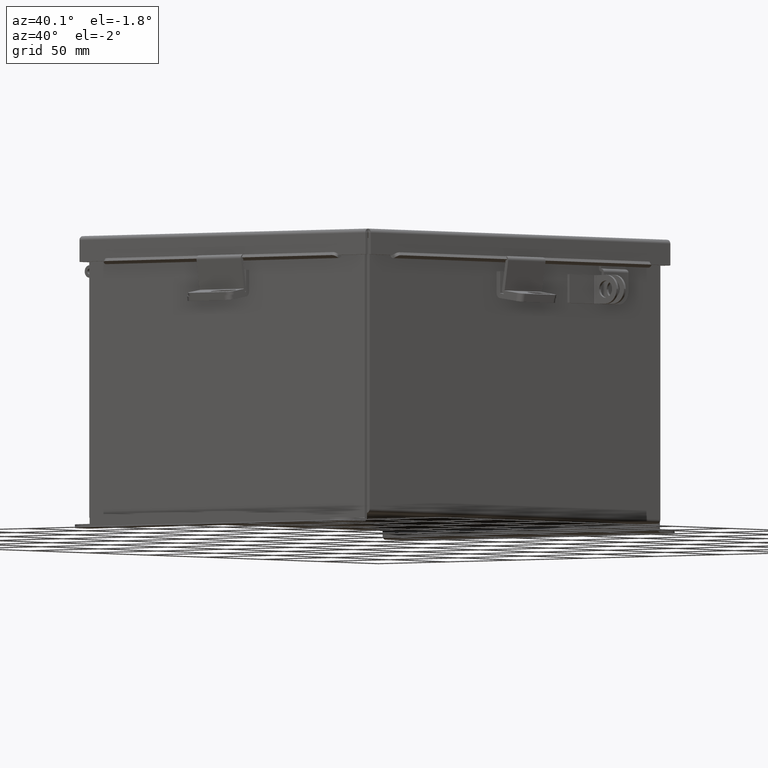
[diagram: clean part render]
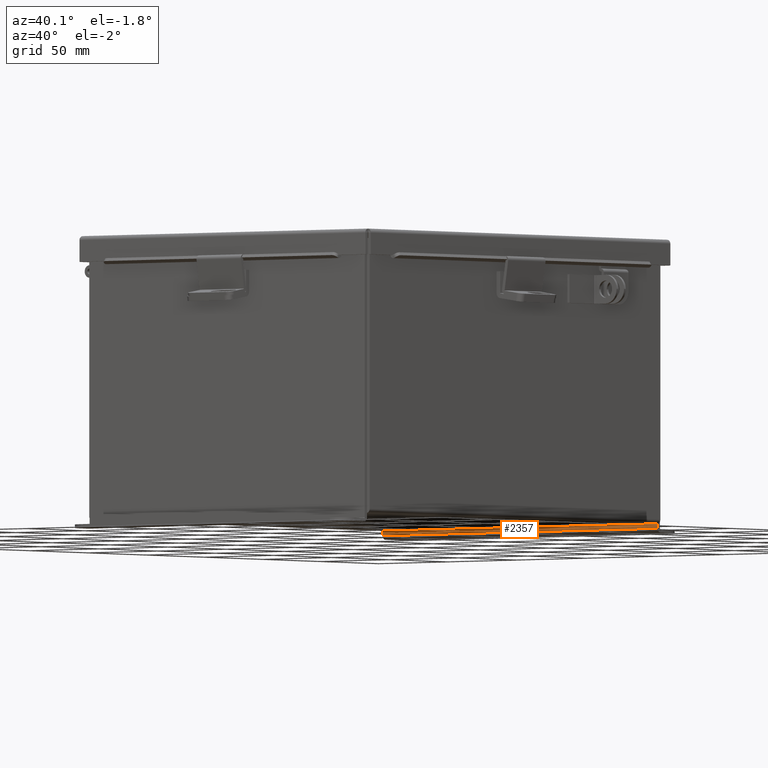
[diagram: same view with one face highlighted and labeled with its STEP entity id]
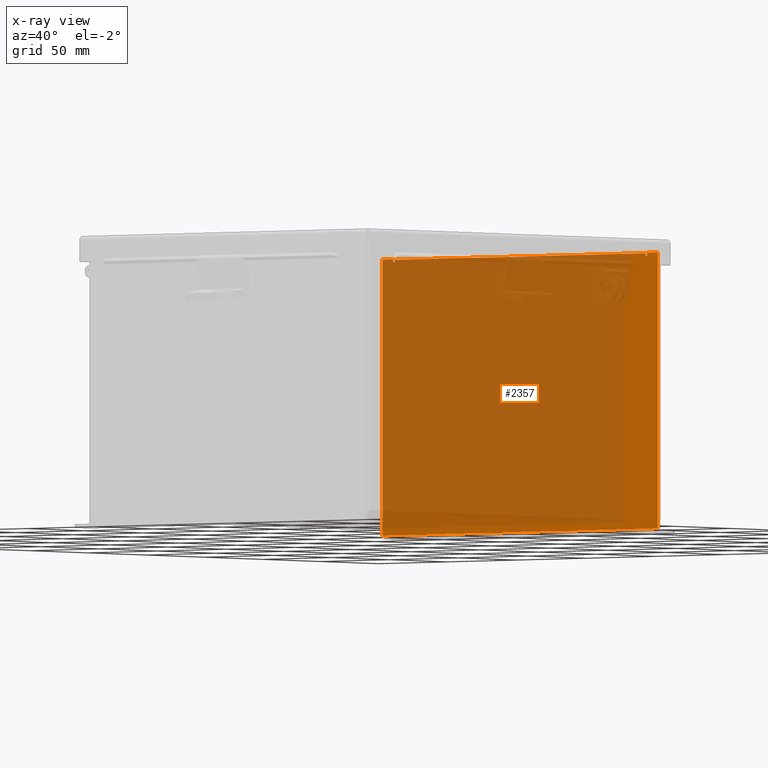
[diagram: x-ray of the same camera — body ghosted, the highlighted face saturated]
A machine part, auxiliary view. The second image highlights one B-rep face of the part: STEP entity #2357.
The next image is the same camera in x-ray: the body ghosted, the highlighted face saturated — about 86% of this face is hidden behind the body in this view.
In plain terms, the highlighted planar face has unit normal (0, -1, 0).
Its self-contained STEP definition (entity closure, byte-faithful):
#90 = DIRECTION ( 'NONE',  ( 0.0000000000000000000, -1.000000000000000000, 0.0000000000000000000 ) ) ;
#347 = DIRECTION ( 'NONE',  ( 0.0000000000000000000, -1.000000000000000000, 0.0000000000000000000 ) ) ;
#409 = LINE ( 'NONE', #1976, #13574 ) ;
#448 = EDGE_LOOP ( 'NONE', ( #13581, #15116, #8934, #9016, #13176, #3274, #9006, #5474, #8708, #10092, #12598, #9792 ) ) ;
#780 = EDGE_CURVE ( 'NONE', #10496, #4233, #409, .T. ) ;
#892 = CARTESIAN_POINT ( 'NONE',  ( 3.925299999999999600, -0.07470000000000015500, 2.925299999999999600 ) ) ;
#933 = VECTOR ( 'NONE', #13451, 39.37007874015748100 ) ;
#962 = VECTOR ( 'NONE', #10727, 39.37007874015748100 ) ;
#1055 = VECTOR ( 'NONE', #14631, 39.37007874015748100 ) ;
#1268 = DIRECTION ( 'NONE',  ( 1.000000000000000000, 0.0000000000000000000, 0.0000000000000000000 ) ) ;
#1286 = CARTESIAN_POINT ( 'NONE',  ( 3.619649999999999600, -0.07470000000000015500, 2.874949999999999200 ) ) ;
#1338 = LINE ( 'NONE', #6052, #7951 ) ;
#1412 = VERTEX_POINT ( 'NONE', #9474 ) ;
#1668 = VERTEX_POINT ( 'NONE', #11249 ) ;
#1976 = CARTESIAN_POINT ( 'NONE',  ( -3.925299999999999600, -0.07470000000000015500, 2.925299999999999600 ) ) ;
#2208 = EDGE_CURVE ( 'NONE', #1668, #10496, #5750, .T. ) ;
#2306 = DIRECTION ( 'NONE',  ( 1.000000000000000000, -0.0000000000000000000, -0.0000000000000000000 ) ) ;
#2357 = ADVANCED_FACE ( 'NONE', ( #5948 ), #7974, .T. ) ;
#2408 = CARTESIAN_POINT ( 'NONE',  ( -3.582299999999999600, -0.07470000000000015500, 2.874949999999999200 ) ) ;
#2677 = CARTESIAN_POINT ( 'NONE',  ( 3.600974999999999600, -0.07469999999999907300, 2.874949999999999200 ) ) ;
#2847 = CARTESIAN_POINT ( 'NONE',  ( 0.0000000000000000000, -0.07470000000000015500, 0.0000000000000000000 ) ) ;
#3137 = CIRCLE ( 'NONE', #5861, 0.01867500000000003900 ) ;
#3274 = ORIENTED_EDGE ( 'NONE', *, *, #8460, .F. ) ;
#3415 = VERTEX_POINT ( 'NONE', #14360 ) ;
#3448 = AXIS2_PLACEMENT_3D ( 'NONE', #2847, #347, #9255 ) ;
#3767 = EDGE_CURVE ( 'NONE', #9686, #15648, #9196, .T. ) ;
#3978 = DIRECTION ( 'NONE',  ( 0.0000000000000000000, 0.0000000000000000000, -1.000000000000000000 ) ) ;
#4233 = VERTEX_POINT ( 'NONE', #5393 ) ;
#4312 = AXIS2_PLACEMENT_3D ( 'NONE', #2677, #11598, #3978 ) ;
#4321 = CARTESIAN_POINT ( 'NONE',  ( -3.619649999999999600, -0.07469999999999907300, 2.925299999999999600 ) ) ;
#4367 = LINE ( 'NONE', #4321, #962 ) ;
#4462 = LINE ( 'NONE', #12065, #1055 ) ;
#4550 = CARTESIAN_POINT ( 'NONE',  ( -3.582299999999999600, -0.07469999999999907300, 2.912299999999999200 ) ) ;
#5139 = CARTESIAN_POINT ( 'NONE',  ( -3.925299999999999600, -0.07470000000000015500, 2.925299999999999600 ) ) ;
#5156 = CARTESIAN_POINT ( 'NONE',  ( -3.925299999999999600, -0.07470000000000015500, 2.925299999999999600 ) ) ;
#5393 = CARTESIAN_POINT ( 'NONE',  ( -3.619649999999999600, -0.07470000000000015500, 2.925299999999999600 ) ) ;
#5474 = ORIENTED_EDGE ( 'NONE', *, *, #12707, .F. ) ;
#5646 = CARTESIAN_POINT ( 'NONE',  ( 3.925299999999999600, -0.07470000000000015500, 2.925299999999999600 ) ) ;
#5750 = LINE ( 'NONE', #5156, #8345 ) ;
#5861 = AXIS2_PLACEMENT_3D ( 'NONE', #7715, #90, #9000 ) ;
#5948 = FACE_OUTER_BOUND ( 'NONE', #448, .T. ) ;
#5994 = VERTEX_POINT ( 'NONE', #2408 ) ;
#6052 = CARTESIAN_POINT ( 'NONE',  ( -3.925299999999999600, -0.07470000000000015500, -3.099299999999999900 ) ) ;
#6500 = CARTESIAN_POINT ( 'NONE',  ( 3.582299999999999600, -0.07469999999999907300, 2.912299999999999200 ) ) ;
#7126 = CARTESIAN_POINT ( 'NONE',  ( 3.925299999999999600, -0.07470000000000015500, -3.099299999999999900 ) ) ;
#7261 = EDGE_CURVE ( 'NONE', #1668, #11210, #1338, .T. ) ;
#7326 = LINE ( 'NONE', #10019, #8728 ) ;
#7715 = CARTESIAN_POINT ( 'NONE',  ( -3.600974999999999600, -0.07469999999999907300, 2.874949999999999200 ) ) ;
#7951 = VECTOR ( 'NONE', #2306, 39.37007874015748100 ) ;
#7974 = PLANE ( 'NONE',  #3448 ) ;
#8207 = EDGE_CURVE ( 'NONE', #14016, #5994, #3137, .T. ) ;
#8345 = VECTOR ( 'NONE', #12791, 39.37007874015748100 ) ;
#8386 = VECTOR ( 'NONE', #1268, 39.37007874015748100 ) ;
#8451 = DIRECTION ( 'NONE',  ( 1.000000000000000000, 0.0000000000000000000, 0.0000000000000000000 ) ) ;
#8460 = EDGE_CURVE ( 'NONE', #15648, #11210, #12710, .T. ) ;
#8708 = ORIENTED_EDGE ( 'NONE', *, *, #11735, .F. ) ;
#8728 = VECTOR ( 'NONE', #16359, 39.37007874015748100 ) ;
#8934 = ORIENTED_EDGE ( 'NONE', *, *, #780, .F. ) ;
#9000 = DIRECTION ( 'NONE',  ( 0.0000000000000000000, 0.0000000000000000000, -1.000000000000000000 ) ) ;
#9006 = ORIENTED_EDGE ( 'NONE', *, *, #3767, .F. ) ;
#9016 = ORIENTED_EDGE ( 'NONE', *, *, #2208, .F. ) ;
#9135 = CARTESIAN_POINT ( 'NONE',  ( 3.582299999999999600, -0.07470000000000015500, 2.912299999999999200 ) ) ;
#9196 = LINE ( 'NONE', #5139, #8386 ) ;
#9255 = DIRECTION ( 'NONE',  ( 0.0000000000000000000, -0.0000000000000000000, -1.000000000000000000 ) ) ;
#9474 = CARTESIAN_POINT ( 'NONE',  ( -3.582299999999999600, -0.07470000000000015500, 2.912299999999999200 ) ) ;
#9686 = VERTEX_POINT ( 'NONE', #13746 ) ;
#9703 = VECTOR ( 'NONE', #14569, 39.37007874015748100 ) ;
#9792 = ORIENTED_EDGE ( 'NONE', *, *, #15100, .F. ) ;
#9821 = VERTEX_POINT ( 'NONE', #1286 ) ;
#10019 = CARTESIAN_POINT ( 'NONE',  ( -3.582299999999999600, -0.07469999999999907300, 2.874949999999999200 ) ) ;
#10092 = ORIENTED_EDGE ( 'NONE', *, *, #13642, .F. ) ;
#10496 = VERTEX_POINT ( 'NONE', #13406 ) ;
#10522 = EDGE_CURVE ( 'NONE', #1412, #13700, #13711, .T. ) ;
#10727 = DIRECTION ( 'NONE',  ( 0.0000000000000000000, 1.186875369640613200E-014, -1.000000000000000000 ) ) ;
#11210 = VERTEX_POINT ( 'NONE', #7126 ) ;
#11249 = CARTESIAN_POINT ( 'NONE',  ( -3.925299999999999600, -0.07470000000000015500, -3.099299999999999900 ) ) ;
#11598 = DIRECTION ( 'NONE',  ( 0.0000000000000000000, -1.000000000000000000, 0.0000000000000000000 ) ) ;
#11735 = EDGE_CURVE ( 'NONE', #3415, #9821, #12059, .T. ) ;
#12059 = CIRCLE ( 'NONE', #4312, 0.01867500000000003900 ) ;
#12065 = CARTESIAN_POINT ( 'NONE',  ( 3.619649999999999600, -0.07469999999999907300, 2.874949999999999200 ) ) ;
#12234 = CARTESIAN_POINT ( 'NONE',  ( -3.619649999999999600, -0.07470000000000015500, 2.874949999999999200 ) ) ;
#12417 = LINE ( 'NONE', #6500, #16193 ) ;
#12598 = ORIENTED_EDGE ( 'NONE', *, *, #10522, .F. ) ;
#12707 = EDGE_CURVE ( 'NONE', #9821, #9686, #4462, .T. ) ;
#12710 = LINE ( 'NONE', #5646, #9703 ) ;
#12791 = DIRECTION ( 'NONE',  ( -0.0000000000000000000, -0.0000000000000000000, 1.000000000000000000 ) ) ;
#13176 = ORIENTED_EDGE ( 'NONE', *, *, #7261, .T. ) ;
#13406 = CARTESIAN_POINT ( 'NONE',  ( -3.925299999999999600, -0.07470000000000015500, 2.925299999999999600 ) ) ;
#13451 = DIRECTION ( 'NONE',  ( 1.000000000000000000, 0.0000000000000000000, 0.0000000000000000000 ) ) ;
#13574 = VECTOR ( 'NONE', #8451, 39.37007874015748100 ) ;
#13581 = ORIENTED_EDGE ( 'NONE', *, *, #8207, .F. ) ;
#13642 = EDGE_CURVE ( 'NONE', #13700, #3415, #12417, .T. ) ;
#13700 = VERTEX_POINT ( 'NONE', #9135 ) ;
#13711 = LINE ( 'NONE', #4550, #933 ) ;
#13746 = CARTESIAN_POINT ( 'NONE',  ( 3.619650000000000900, -0.07470000000000015500, 2.925299999999999600 ) ) ;
#14016 = VERTEX_POINT ( 'NONE', #12234 ) ;
#14360 = CARTESIAN_POINT ( 'NONE',  ( 3.582299999999999600, -0.07470000000000015500, 2.874949999999999200 ) ) ;
#14427 = EDGE_CURVE ( 'NONE', #4233, #14016, #4367, .T. ) ;
#14569 = DIRECTION ( 'NONE',  ( 0.0000000000000000000, 0.0000000000000000000, -1.000000000000000000 ) ) ;
#14631 = DIRECTION ( 'NONE',  ( 2.170286390199978800E-014, -1.186875369640613200E-014, 1.000000000000000000 ) ) ;
#15100 = EDGE_CURVE ( 'NONE', #5994, #1412, #7326, .T. ) ;
#15116 = ORIENTED_EDGE ( 'NONE', *, *, #14427, .F. ) ;
#15420 = DIRECTION ( 'NONE',  ( 0.0000000000000000000, 0.0000000000000000000, -1.000000000000000000 ) ) ;
#15648 = VERTEX_POINT ( 'NONE', #892 ) ;
#16193 = VECTOR ( 'NONE', #15420, 39.37007874015748100 ) ;
#16359 = DIRECTION ( 'NONE',  ( 0.0000000000000000000, 0.0000000000000000000, 1.000000000000000000 ) ) ;